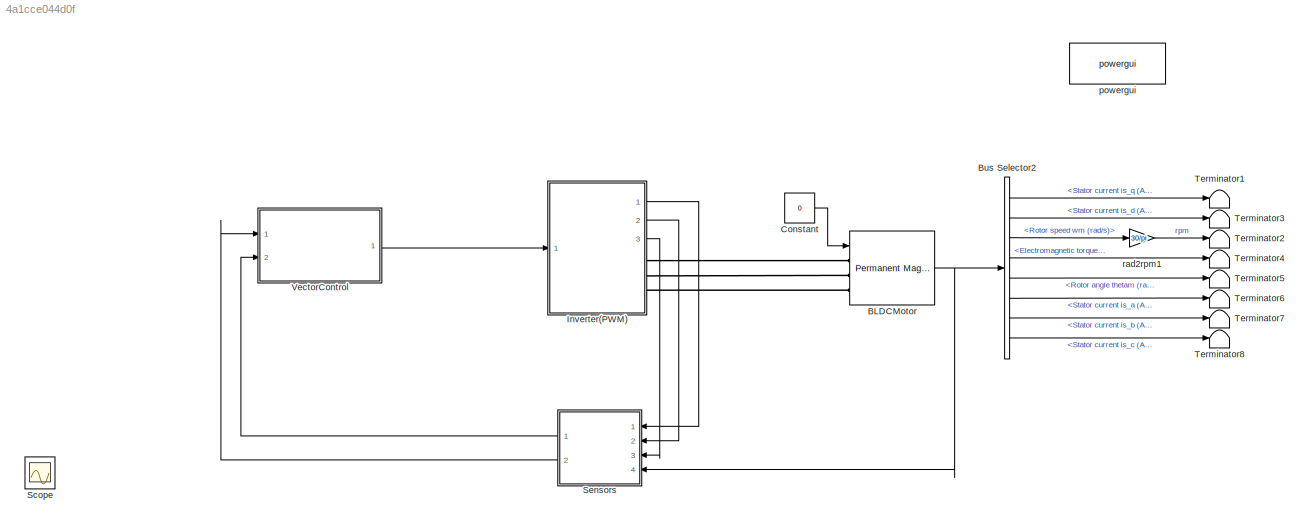
MODEL slx_4a1cce044d0f
KIND model
CONFIG AbsTol = 1e-6
CONFIG EnableMultiTasking = on
CONFIG FixedStep = 0.001
CONFIG MaxStep = 1e-4
CONFIG MinStep = auto
CONFIG RelTol = 1e-6
CONFIG SampleTimeConstraint = Unconstrained
CONFIG Solver = ode15s
CONFIG SolverName = ode15s
CONFIG StartTime = 0
CONFIG StopFcn = % TNAnalyzexxxPlot
CONFIG StopTime = 1
BLOCK [Reference] BLDCMotor  REF=powerlib/Machines/Permanent Magnet
Synchronous Machine
  Ports = [1, 1, 0, 0, 0, 3]
  SourceBlock = powerlib/Machines/Permanent Magnet\nSynchronous Machine
  SourceProductBaseCode = PS
  SourceProductName = Simscape Electrical
  SourceType = Permanent Magnet Synchronous Machine
BLOCK [BusSelector] Bus Selector2
  OutputAsBus = off
  OutputSignals = Stator current is_q (A),Stator current is_d (A),Rotor speed wm (rad/s),Electromagnetic torque Te (N*m),Rotor angle thetam (rad),Stator current is_a (A),Stator current is_b (A),Stator current is_c (A)
  Ports = [1, 8]
BLOCK [Constant] Constant
  Value = 0
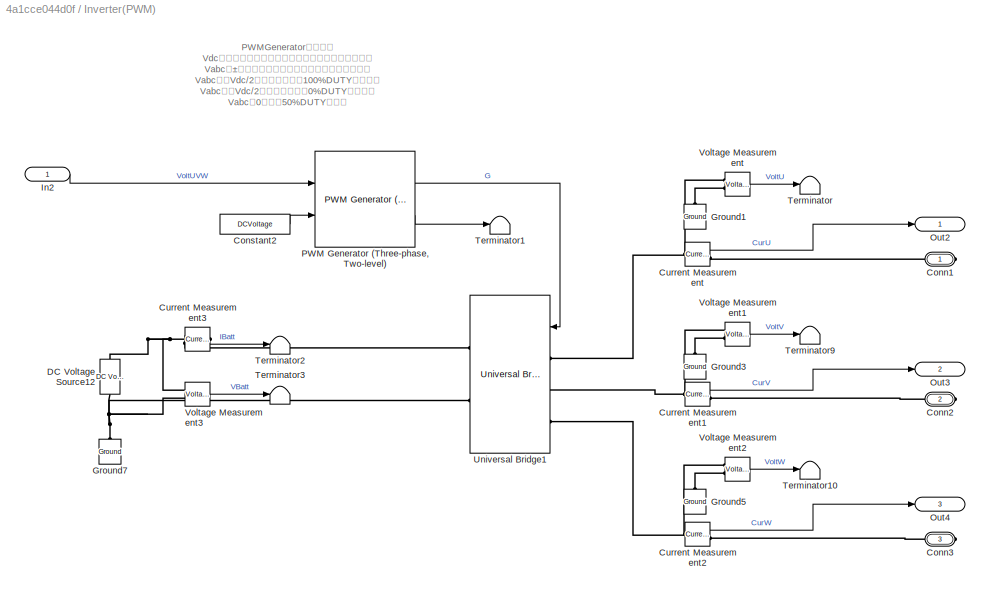
BLOCK [SubSystem] Inverter(PWM)
  Ports = [1, 3, 0, 0, 0, 0, 3]
  RequestExecContextInheritance = off
BLOCK [PMIOPort] Inverter(PWM)/Conn1
  Side = Right
BLOCK [PMIOPort] Inverter(PWM)/Conn2
  Port = 2
  Side = Right
BLOCK [PMIOPort] Inverter(PWM)/Conn3
  Port = 3
  Side = Right
BLOCK [Constant] Inverter(PWM)/Constant2
  Value = DCVoltage
BLOCK [Reference] Inverter(PWM)/Current Measurement  REF=powerlib/Measurements/Current Measurement
  Ports = [0, 1, 0, 0, 0, 1, 1]
  SourceBlock = powerlib/Measurements/Current Measurement
  SourceProductBaseCode = PS
  SourceProductName = Simscape Electrical
  SourceType = Current Measurement
  UserDataPersistent = on
BLOCK [Reference] Inverter(PWM)/Current Measurement1  REF=powerlib/Measurements/Current Measurement
  Ports = [0, 1, 0, 0, 0, 1, 1]
  SourceBlock = powerlib/Measurements/Current Measurement
  SourceProductBaseCode = PS
  SourceProductName = Simscape Electrical
  SourceType = Current Measurement
  UserDataPersistent = on
BLOCK [Reference] Inverter(PWM)/Current Measurement2  REF=powerlib/Measurements/Current Measurement
  Ports = [0, 1, 0, 0, 0, 1, 1]
  SourceBlock = powerlib/Measurements/Current Measurement
  SourceProductBaseCode = PS
  SourceProductName = Simscape Electrical
  SourceType = Current Measurement
  UserDataPersistent = on
BLOCK [Reference] Inverter(PWM)/Current Measurement3  REF=powerlib/Measurements/Current Measurement
  Ports = [0, 1, 0, 0, 0, 1, 1]
  SourceBlock = powerlib/Measurements/Current Measurement
  SourceProductBaseCode = PS
  SourceProductName = Simscape Electrical
  SourceType = Current Measurement
  UserDataPersistent = on
BLOCK [Reference] Inverter(PWM)/DC Voltage Source12  REF=powerlib/Electrical
Sources/DC Voltage Source
  Ports = [0, 0, 0, 0, 0, 1, 1]
  SourceBlock = powerlib/Electrical\nSources/DC Voltage Source
  SourceProductBaseCode = PS
  SourceProductName = Simscape Electrical
  SourceType = DC Voltage Source
BLOCK [Reference] Inverter(PWM)/Ground1  REF=powerlib/Elements/Ground
  Ports = [0, 0, 0, 0, 0, 1]
  SourceBlock = powerlib/Elements/Ground
  SourceProductBaseCode = PS
  SourceProductName = Simscape Electrical
  SourceType = Ground
BLOCK [Reference] Inverter(PWM)/Ground3  REF=powerlib/Elements/Ground
  Ports = [0, 0, 0, 0, 0, 1]
  SourceBlock = powerlib/Elements/Ground
  SourceProductBaseCode = PS
  SourceProductName = Simscape Electrical
  SourceType = Ground
BLOCK [Reference] Inverter(PWM)/Ground5  REF=powerlib/Elements/Ground
  Ports = [0, 0, 0, 0, 0, 1]
  SourceBlock = powerlib/Elements/Ground
  SourceProductBaseCode = PS
  SourceProductName = Simscape Electrical
  SourceType = Ground
BLOCK [Reference] Inverter(PWM)/Ground7  REF=powerlib/Elements/Ground
  Ports = [0, 0, 0, 0, 0, 1]
  SourceBlock = powerlib/Elements/Ground
  SourceProductBaseCode = PS
  SourceProductName = Simscape Electrical
  SourceType = Ground
BLOCK [Inport] Inverter(PWM)/In2
  IconDisplay = Signal name
BLOCK [Outport] Inverter(PWM)/Out2
  IconDisplay = Signal name
  VectorParamsAs1DForOutWhenUnconnected = off
BLOCK [Outport] Inverter(PWM)/Out3
  IconDisplay = Signal name
  Port = 2
  VectorParamsAs1DForOutWhenUnconnected = off
BLOCK [Outport] Inverter(PWM)/Out4
  IconDisplay = Signal name
  Port = 3
  VectorParamsAs1DForOutWhenUnconnected = off
BLOCK [Reference] Inverter(PWM)/PWM Generator (Three-phase, Two-level)  REF=eePwmGeneratorTwoLevel/PWM Generator
(Three-phase, Two-level)
  Ports = [2, 2]
  SourceBlock = eePwmGeneratorTwoLevel/PWM Generator\n(Three-phase, Two-level)
  SourceProductBaseCode = PS
  SourceProductName = Simscape Electrical
  SourceType = PWM Generator (three-phase, two-level)
BLOCK [Terminator] Inverter(PWM)/Terminator
BLOCK [Terminator] Inverter(PWM)/Terminator1
BLOCK [Terminator] Inverter(PWM)/Terminator10
BLOCK [Terminator] Inverter(PWM)/Terminator2
BLOCK [Terminator] Inverter(PWM)/Terminator3
BLOCK [Terminator] Inverter(PWM)/Terminator9
BLOCK [Reference] Inverter(PWM)/Universal Bridge1  REF=powerlib/Power
Electronics/Universal Bridge
  Ports = [1, 0, 0, 0, 0, 3, 2]
  SourceBlock = powerlib/Power\nElectronics/Universal Bridge
  SourceProductBaseCode = PS
  SourceProductName = Simscape Electrical
  SourceType = Universal Bridge
BLOCK [Reference] Inverter(PWM)/Voltage Measurement  REF=powerlib/Measurements/Voltage Measurement
  Ports = [0, 1, 0, 0, 0, 2]
  SourceBlock = powerlib/Measurements/Voltage Measurement
  SourceProductBaseCode = PS
  SourceProductName = Simscape Electrical
  SourceType = Voltage Measurement
  UserDataPersistent = on
BLOCK [Reference] Inverter(PWM)/Voltage Measurement1  REF=powerlib/Measurements/Voltage Measurement
  Ports = [0, 1, 0, 0, 0, 2]
  SourceBlock = powerlib/Measurements/Voltage Measurement
  SourceProductBaseCode = PS
  SourceProductName = Simscape Electrical
  SourceType = Voltage Measurement
  UserDataPersistent = on
BLOCK [Reference] Inverter(PWM)/Voltage Measurement2  REF=powerlib/Measurements/Voltage Measurement
  Ports = [0, 1, 0, 0, 0, 2]
  SourceBlock = powerlib/Measurements/Voltage Measurement
  SourceProductBaseCode = PS
  SourceProductName = Simscape Electrical
  SourceType = Voltage Measurement
  UserDataPersistent = on
BLOCK [Reference] Inverter(PWM)/Voltage Measurement3  REF=powerlib/Measurements/Voltage Measurement
  Ports = [0, 1, 0, 0, 0, 2]
  SourceBlock = powerlib/Measurements/Voltage Measurement
  SourceProductBaseCode = PS
  SourceProductName = Simscape Electrical
  SourceType = Voltage Measurement
  UserDataPersistent = on
BLOCK [Scope] Scope
  Floating = off
  IOType = viewer
  NumInputPorts = 1
  Ports = []
  ScopeSpecificationString = Simulink.scopes.TimeScopeBlockCfg('CurrentConfiguration', extmgr.ConfigurationSet(extmgr.Configuration('Core','General UI',true),extmgr.Configuration('Core','Source UI',true),extmgr.Configuration('Sources','WiredSimulink',true,'DataLoggingVariableName','ScopeData1'),extmgr.Configuration('Visuals','Time Domain',true,'SerializedDisplays',{struct('MinYLimReal','-0.00897','MaxYLimReal','0.08076','YLab...<+1435ch>
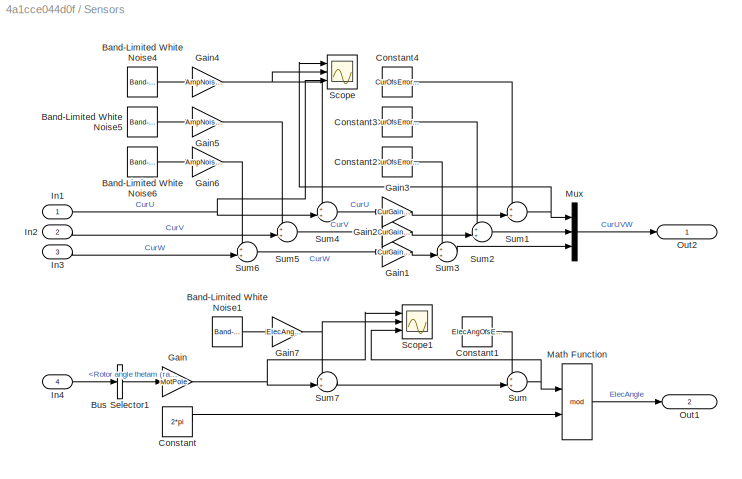
BLOCK [SubSystem] Sensors
  Ports = [4, 2]
  RequestExecContextInheritance = off
BLOCK [Reference] Sensors/Band-Limited White Noise1  REF=simulink/Sources/Band-Limited
White Noise
  Ports = [0, 1]
  SourceBlock = simulink/Sources/Band-Limited\nWhite Noise
  SourceProductBaseCode = SL
  SourceProductName = Simulink
  SourceType = Band-Limited White Noise.
BLOCK [Reference] Sensors/Band-Limited White Noise4  REF=simulink/Sources/Band-Limited
White Noise
  Ports = [0, 1]
  SourceBlock = simulink/Sources/Band-Limited\nWhite Noise
  SourceProductBaseCode = SL
  SourceProductName = Simulink
  SourceType = Band-Limited White Noise.
BLOCK [Reference] Sensors/Band-Limited White Noise5  REF=simulink/Sources/Band-Limited
White Noise
  Ports = [0, 1]
  SourceBlock = simulink/Sources/Band-Limited\nWhite Noise
  SourceProductBaseCode = SL
  SourceProductName = Simulink
  SourceType = Band-Limited White Noise.
BLOCK [Reference] Sensors/Band-Limited White Noise6  REF=simulink/Sources/Band-Limited
White Noise
  Ports = [0, 1]
  SourceBlock = simulink/Sources/Band-Limited\nWhite Noise
  SourceProductBaseCode = SL
  SourceProductName = Simulink
  SourceType = Band-Limited White Noise.
BLOCK [BusSelector] Sensors/Bus Selector1
  OutputAsBus = off
  OutputSignals = Rotor angle thetam (rad)
  Ports = [1, 1]
BLOCK [Constant] Sensors/Constant
  Value = 2*pi
BLOCK [Constant] Sensors/Constant1
  Value = ElecAngOfsError
BLOCK [Constant] Sensors/Constant2
  Value = CurOfsError_W
BLOCK [Constant] Sensors/Constant3
  Value = CurOfsError_V
BLOCK [Constant] Sensors/Constant4
  Value = CurOfsError_U
BLOCK [Gain] Sensors/Gain
  Gain = MotPole
  OutDataTypeStr = Inherit: Inherit via internal rule
  ParamDataTypeStr = Inherit: Inherit via internal rule
  SaturateOnIntegerOverflow = off
BLOCK [Gain] Sensors/Gain1
  Gain = CurGainError_W
  OutDataTypeStr = Inherit: Inherit via internal rule
  ParamDataTypeStr = Inherit: Inherit via internal rule
  SaturateOnIntegerOverflow = off
BLOCK [Gain] Sensors/Gain2
  Gain = CurGainError_V
  OutDataTypeStr = Inherit: Inherit via internal rule
  ParamDataTypeStr = Inherit: Inherit via internal rule
  SaturateOnIntegerOverflow = off
BLOCK [Gain] Sensors/Gain3
  Gain = CurGainError_U
  OutDataTypeStr = Inherit: Inherit via internal rule
  ParamDataTypeStr = Inherit: Inherit via internal rule
  SaturateOnIntegerOverflow = off
BLOCK [Gain] Sensors/Gain4
  Gain = AmpNoise/5
  OutDataTypeStr = Inherit: Inherit via internal rule
  ParamDataTypeStr = Inherit: Inherit via internal rule
  SaturateOnIntegerOverflow = off
BLOCK [Gain] Sensors/Gain5
  Gain = AmpNoise/5
  OutDataTypeStr = Inherit: Inherit via internal rule
  ParamDataTypeStr = Inherit: Inherit via internal rule
  SaturateOnIntegerOverflow = off
BLOCK [Gain] Sensors/Gain6
  Gain = AmpNoise/5
  OutDataTypeStr = Inherit: Inherit via internal rule
  ParamDataTypeStr = Inherit: Inherit via internal rule
  SaturateOnIntegerOverflow = off
BLOCK [Gain] Sensors/Gain7
  Gain = ElecAngNoise/5
  OutDataTypeStr = Inherit: Inherit via internal rule
  ParamDataTypeStr = Inherit: Inherit via internal rule
  SaturateOnIntegerOverflow = off
BLOCK [Inport] Sensors/In1
  IconDisplay = Signal name
BLOCK [Inport] Sensors/In2
  IconDisplay = Signal name
  Port = 2
BLOCK [Inport] Sensors/In3
  IconDisplay = Signal name
  Port = 3
BLOCK [Inport] Sensors/In4
  IconDisplay = Port number
  Port = 4
BLOCK [Math] Sensors/Math Function
  Operator = mod
  Ports = [2, 1]
BLOCK [Mux] Sensors/Mux
  DisplayOption = bar
  Inputs = 3
  Ports = [3, 1]
BLOCK [Outport] Sensors/Out1
  IconDisplay = Signal name
  Port = 2
  VectorParamsAs1DForOutWhenUnconnected = off
BLOCK [Outport] Sensors/Out2
  IconDisplay = Signal name
  VectorParamsAs1DForOutWhenUnconnected = off
BLOCK [Scope] Sensors/Scope
  Floating = off
  NumInputPorts = 3
  Ports = [3]
  ScopeSpecificationString = Simulink.scopes.TimeScopeBlockCfg('CurrentConfiguration', extmgr.ConfigurationSet(extmgr.Configuration('Core','General UI',true),extmgr.Configuration('Core','Source UI',true),extmgr.Configuration('Sources','WiredSimulink',true,'DataLoggingVariableName','ScopeData1'),extmgr.Configuration('Visuals','Time Domain',true,'SerializedDisplays',{struct('MinYLimReal','-2.22303','MaxYLimReal','1.5278','YLabe...<+1404ch>
BLOCK [Scope] Sensors/Scope1
  Floating = off
  NumInputPorts = 3
  Ports = [3]
  ScopeSpecificationString = Simulink.scopes.TimeScopeBlockCfg('CurrentConfiguration', extmgr.ConfigurationSet(extmgr.Configuration('Core','General UI',true),extmgr.Configuration('Core','Source UI',true),extmgr.Configuration('Sources','WiredSimulink',true,'DataLoggingVariableName','ScopeData2'),extmgr.Configuration('Visuals','Time Domain',true,'SerializedDisplays',{struct('MinYLimReal','-5.68694','MaxYLimReal','0.70328','YLab...<+1419ch>
BLOCK [Sum] Sensors/Sum
  IconShape = round
  InputSameDT = off
  Inputs = ++|
  OutDataTypeStr = Inherit: Inherit via internal rule
  Ports = [2, 1]
  SaturateOnIntegerOverflow = off
BLOCK [Sum] Sensors/Sum1
  IconShape = round
  InputSameDT = off
  Inputs = ++|
  OutDataTypeStr = Inherit: Inherit via internal rule
  Ports = [2, 1]
  SaturateOnIntegerOverflow = off
BLOCK [Sum] Sensors/Sum2
  IconShape = round
  InputSameDT = off
  Inputs = ++|
  OutDataTypeStr = Inherit: Inherit via internal rule
  Ports = [2, 1]
  SaturateOnIntegerOverflow = off
BLOCK [Sum] Sensors/Sum3
  IconShape = round
  InputSameDT = off
  Inputs = ++|
  OutDataTypeStr = Inherit: Inherit via internal rule
  Ports = [2, 1]
  SaturateOnIntegerOverflow = off
BLOCK [Sum] Sensors/Sum4
  IconShape = round
  InputSameDT = off
  Inputs = ++|
  OutDataTypeStr = Inherit: Inherit via internal rule
  Ports = [2, 1]
  SaturateOnIntegerOverflow = off
BLOCK [Sum] Sensors/Sum5
  IconShape = round
  InputSameDT = off
  Inputs = ++|
  OutDataTypeStr = Inherit: Inherit via internal rule
  Ports = [2, 1]
  SaturateOnIntegerOverflow = off
BLOCK [Sum] Sensors/Sum6
  IconShape = round
  InputSameDT = off
  Inputs = ++|
  OutDataTypeStr = Inherit: Inherit via internal rule
  Ports = [2, 1]
  SaturateOnIntegerOverflow = off
BLOCK [Sum] Sensors/Sum7
  IconShape = round
  InputSameDT = off
  Inputs = ++|
  OutDataTypeStr = Inherit: Inherit via internal rule
  Ports = [2, 1]
  SaturateOnIntegerOverflow = off
BLOCK [Terminator] Terminator1
BLOCK [Terminator] Terminator2
BLOCK [Terminator] Terminator3
BLOCK [Terminator] Terminator4
BLOCK [Terminator] Terminator5
BLOCK [Terminator] Terminator6
BLOCK [Terminator] Terminator7
BLOCK [Terminator] Terminator8
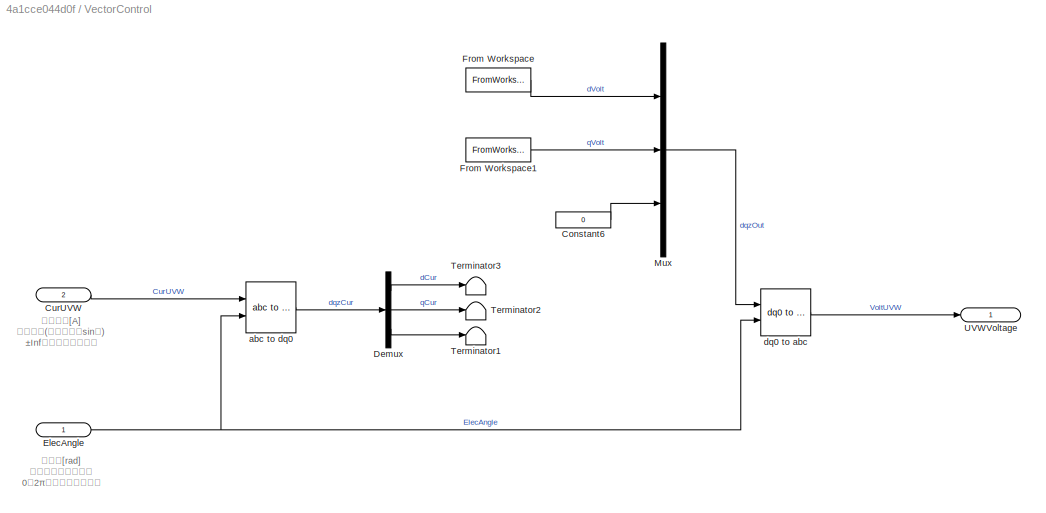
BLOCK [SubSystem] VectorControl
  Ports = [2, 1]
  RequestExecContextInheritance = off
BLOCK [Constant] VectorControl/Constant6
  Value = 0
BLOCK [Inport] VectorControl/CurUVW
  IconDisplay = Signal name
  Port = 2
BLOCK [Demux] VectorControl/Demux
  DisplayOption = bar
  Outputs = 3
  Ports = [1, 3]
BLOCK [Inport] VectorControl/ElecAngle
  IconDisplay = Signal name
BLOCK [FromWorkspace] VectorControl/From Workspace
  SampleTime = 0
  VariableName = dVoltIn
  ZeroCross = on
BLOCK [FromWorkspace] VectorControl/From Workspace1
  SampleTime = 0
  VariableName = qVoltIn
  ZeroCross = on
BLOCK [Mux] VectorControl/Mux
  DisplayOption = bar
  Inputs = 3
  Ports = [3, 1]
BLOCK [Terminator] VectorControl/Terminator1
BLOCK [Terminator] VectorControl/Terminator2
BLOCK [Terminator] VectorControl/Terminator3
BLOCK [Outport] VectorControl/UVWVoltage
  IconDisplay = Signal name
  VectorParamsAs1DForOutWhenUnconnected = off
BLOCK [Reference] VectorControl/abc to dq0  REF=powerlib_meascontrol/Transformations/abc to dq0
  Ports = [2, 1]
  SourceBlock = powerlib_meascontrol/Transformations/abc to dq0
  SourceProductBaseCode = PS
  SourceProductName = Simscape Electrical
  SourceType = abc to dq0 Transformation
BLOCK [Reference] VectorControl/dq0 to abc  REF=powerlib_meascontrol/Transformations/dq0 to abc
  Ports = [2, 1]
  SourceBlock = powerlib_meascontrol/Transformations/dq0 to abc
  SourceProductBaseCode = PS
  SourceProductName = Simscape Electrical
  SourceType = dq0 to abc Transformation
BLOCK [Reference] powergui  REF=powerlib/powergui
  Ports = []
  Priority = 2
  SourceBlock = powerlib/powergui
  SourceProductBaseCode = PS
  SourceProductName = Simscape Electrical
  SourceType = PSB option menu block
BLOCK [Gain] rad2rpm1
  Gain = 30/pi
  OutDataTypeStr = Inherit: Inherit via internal rule
  ParamDataTypeStr = Inherit: Inherit via internal rule
  SaturateOnIntegerOverflow = off
ANNOTATION Inverter(PWM): PWMGeneratorの注意点 Vdcにはバッテリ電圧として該当する電圧を入れる。 Vabcは±の振幅を持ったゼロ点中心の信号を入れる Vabcが＋Vdc/2になった時点で100%DUTYになる。 Vabcが－Vdc/2になった時点で0%DUTYになる。 Vabcが0の時に50%DUTYになる
ANNOTATION VectorControl: 電気角[rad] のこぎり波様の波形 0～2πの値をとる連続量
ANNOTATION VectorControl: 相電流値[A] 任意波形(定常状態でsin波) ±Infの値をとる連続量
NET BLDCMotor:1 -> Bus Selector2:1, Sensors:4
LINE Bus Selector2:1 -> Terminator1:1
LINE Bus Selector2:2 -> Terminator3:1
LINE Bus Selector2:3 -> rad2rpm1:1
LINE Bus Selector2:4 -> Terminator4:1
LINE Bus Selector2:5 -> Terminator5:1
LINE Bus Selector2:6 -> Terminator6:1
LINE Bus Selector2:7 -> Terminator7:1
LINE Bus Selector2:8 -> Terminator8:1
LINE Constant:1 -> BLDCMotor:1
LINE Inverter(PWM)/Constant2:1 -> Inverter(PWM)/PWM Generator (Three-phase, Two-level):2
LINE Inverter(PWM)/Current Measurement1:1 -> Inverter(PWM)/Out3:1
LINE Inverter(PWM)/Current Measurement2:1 -> Inverter(PWM)/Out4:1
LINE Inverter(PWM)/Current Measurement3:1 -> Inverter(PWM)/Terminator2:1
LINE Inverter(PWM)/Current Measurement:1 -> Inverter(PWM)/Out2:1
LINE Inverter(PWM)/In2:1 -> Inverter(PWM)/PWM Generator (Three-phase, Two-level):1
LINE Inverter(PWM)/PWM Generator (Three-phase, Two-level):1 -> Inverter(PWM)/Universal Bridge1:1
LINE Inverter(PWM)/PWM Generator (Three-phase, Two-level):2 -> Inverter(PWM)/Terminator1:1
LINE Inverter(PWM)/Voltage Measurement1:1 -> Inverter(PWM)/Terminator9:1
LINE Inverter(PWM)/Voltage Measurement2:1 -> Inverter(PWM)/Terminator10:1
LINE Inverter(PWM)/Voltage Measurement3:1 -> Inverter(PWM)/Terminator3:1
LINE Inverter(PWM)/Voltage Measurement:1 -> Inverter(PWM)/Terminator:1
LINE Inverter(PWM):1 -> Sensors:1
LINE Inverter(PWM):2 -> Sensors:2
LINE Inverter(PWM):3 -> Sensors:3
LINE Sensors/Band-Limited White Noise1:1 -> Sensors/Gain7:1
LINE Sensors/Band-Limited White Noise4:1 -> Sensors/Gain4:1
LINE Sensors/Band-Limited White Noise5:1 -> Sensors/Gain5:1
LINE Sensors/Band-Limited White Noise6:1 -> Sensors/Gain6:1
LINE Sensors/Bus Selector1:1 -> Sensors/Gain:1
LINE Sensors/Constant1:1 -> Sensors/Sum:1
LINE Sensors/Constant2:1 -> Sensors/Sum3:1
LINE Sensors/Constant3:1 -> Sensors/Sum2:1
LINE Sensors/Constant4:1 -> Sensors/Sum1:1
LINE Sensors/Constant:1 -> Sensors/Math Function:2
LINE Sensors/Gain1:1 -> Sensors/Sum3:2
LINE Sensors/Gain2:1 -> Sensors/Sum2:2
LINE Sensors/Gain3:1 -> Sensors/Sum1:2
NET Sensors/Gain4:1 -> Sensors/Scope:2, Sensors/Sum4:1
LINE Sensors/Gain5:1 -> Sensors/Sum5:1
LINE Sensors/Gain6:1 -> Sensors/Sum6:1
NET Sensors/Gain7:1 -> Sensors/Scope1:2, Sensors/Sum7:1
NET Sensors/Gain:1 -> Sensors/Scope1:1, Sensors/Sum7:2
NET Sensors/In1:1 -> Sensors/Scope:3, Sensors/Sum4:2
LINE Sensors/In2:1 -> Sensors/Sum5:2
LINE Sensors/In3:1 -> Sensors/Sum6:2
LINE Sensors/In4:1 -> Sensors/Bus Selector1:1
LINE Sensors/Math Function:1 -> Sensors/Out1:1
LINE Sensors/Mux:1 -> Sensors/Out2:1
NET Sensors/Sum1:1 -> Sensors/Mux:1, Sensors/Scope:1
LINE Sensors/Sum2:1 -> Sensors/Mux:2
LINE Sensors/Sum3:1 -> Sensors/Mux:3
LINE Sensors/Sum4:1 -> Sensors/Gain3:1
LINE Sensors/Sum5:1 -> Sensors/Gain2:1
LINE Sensors/Sum6:1 -> Sensors/Gain1:1
LINE Sensors/Sum7:1 -> Sensors/Sum:2
NET Sensors/Sum:1 -> Sensors/Math Function:1, Sensors/Scope1:3
LINE Sensors:1 -> VectorControl:2
LINE Sensors:2 -> VectorControl:1
LINE VectorControl/Constant6:1 -> VectorControl/Mux:3
LINE VectorControl/CurUVW:1 -> VectorControl/abc to dq0:1
LINE VectorControl/Demux:1 -> VectorControl/Terminator3:1
LINE VectorControl/Demux:2 -> VectorControl/Terminator2:1
LINE VectorControl/Demux:3 -> VectorControl/Terminator1:1
NET VectorControl/ElecAngle:1 -> VectorControl/abc to dq0:2, VectorControl/dq0 to abc:2
LINE VectorControl/From Workspace1:1 -> VectorControl/Mux:2
LINE VectorControl/From Workspace:1 -> VectorControl/Mux:1
LINE VectorControl/Mux:1 -> VectorControl/dq0 to abc:1
LINE VectorControl/abc to dq0:1 -> VectorControl/Demux:1
LINE VectorControl/dq0 to abc:1 -> VectorControl/UVWVoltage:1
LINE VectorControl:1 -> Inverter(PWM):1
LINE rad2rpm1:1 -> Terminator2:1
PLINE BLDCMotor:LConn1 -- Inverter(PWM):RConn1
PLINE BLDCMotor:LConn2 -- Inverter(PWM):RConn2
PLINE BLDCMotor:LConn3 -- Inverter(PWM):RConn3
PLINE Inverter(PWM)/Conn1:RConn1 -- Inverter(PWM)/Current Measurement:RConn1
PLINE Inverter(PWM)/Conn2:RConn1 -- Inverter(PWM)/Current Measurement1:RConn1
PLINE Inverter(PWM)/Conn3:RConn1 -- Inverter(PWM)/Current Measurement2:RConn1
PNET net1: Inverter(PWM)/Current Measurement1:LConn1 -- Inverter(PWM)/Universal Bridge1:LConn2 -- Inverter(PWM)/Voltage Measurement1:LConn1
PNET net2: Inverter(PWM)/Current Measurement2:LConn1 -- Inverter(PWM)/Universal Bridge1:LConn3 -- Inverter(PWM)/Voltage Measurement2:LConn1
PNET net3: Inverter(PWM)/Current Measurement3:LConn1 -- Inverter(PWM)/DC Voltage Source12:RConn1 -- Inverter(PWM)/Voltage Measurement3:LConn1
PLINE Inverter(PWM)/Current Measurement3:RConn1 -- Inverter(PWM)/Universal Bridge1:RConn1
PNET net4: Inverter(PWM)/Current Measurement:LConn1 -- Inverter(PWM)/Universal Bridge1:LConn1 -- Inverter(PWM)/Voltage Measurement:LConn1
PNET net5: Inverter(PWM)/DC Voltage Source12:LConn1 -- Inverter(PWM)/Ground7:LConn1 -- Inverter(PWM)/Universal Bridge1:RConn2 -- Inverter(PWM)/Voltage Measurement3:LConn2
PLINE Inverter(PWM)/Ground1:LConn1 -- Inverter(PWM)/Voltage Measurement:LConn2
PLINE Inverter(PWM)/Ground3:LConn1 -- Inverter(PWM)/Voltage Measurement1:LConn2
PLINE Inverter(PWM)/Ground5:LConn1 -- Inverter(PWM)/Voltage Measurement2:LConn2
note: NET lines group one-source signal fan-out (src -> all destinations, sorted); 1:1 wires keep LINE; PNET lines group multi-terminal physical nets as a canonical sorted terminal list (undirected conserving connections); 2-terminal nets keep the pairwise PLINE form
